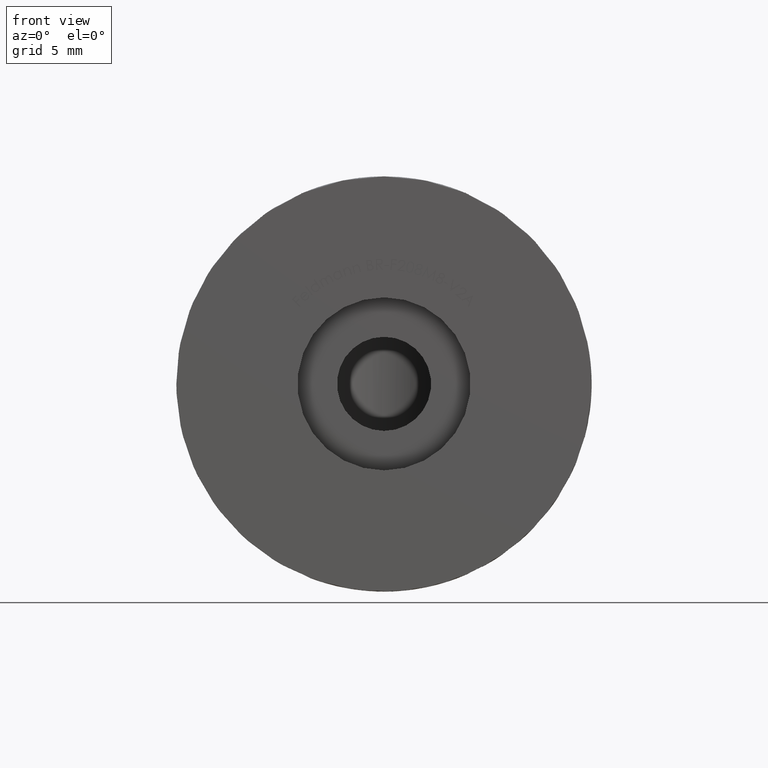
[diagram: clean part render]
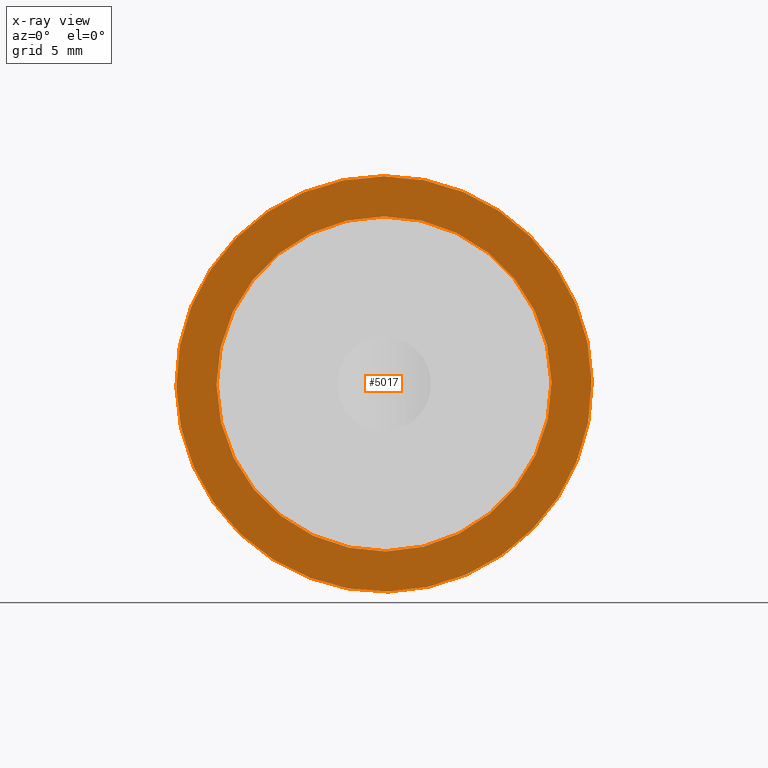
[diagram: x-ray — body ghosted, one internal face saturated and labeled with its STEP entity id]
A machine part, front view, then the same camera in x-ray: the body is ghosted and one INTERNAL B-rep face — a face not visible from any outside direction — is saturated and labeled: STEP entity #5017.
In plain terms, the highlighted planar face has unit normal (0, -1, 0).
Its self-contained STEP definition (entity closure, byte-faithful):
#273 = VERTEX_POINT ( 'NONE', #905 ) ;
#905 = CARTESIAN_POINT ( 'NONE',  ( 0.0000000000000000000, 15.00000000000000000, 12.10000000000000000 ) ) ;
#3226 = DIRECTION ( 'NONE',  ( 0.0000000000000000000, 0.0000000000000000000, 1.000000000000000000 ) ) ;
#4042 = EDGE_LOOP ( 'NONE', ( #7668 ) ) ;
#4607 = CARTESIAN_POINT ( 'NONE',  ( 0.0000000000000000000, 15.00000000000000000, 0.0000000000000000000 ) ) ;
#5017 = ADVANCED_FACE ( 'NONE', ( #5097, #13819 ), #5594, .T. ) ;
#5097 = FACE_OUTER_BOUND ( 'NONE', #13966, .T. ) ;
#5359 = AXIS2_PLACEMENT_3D ( 'NONE', #16502, #12746, #3226 ) ;
#5594 = PLANE ( 'NONE',  #16440 ) ;
#5736 = DIRECTION ( 'NONE',  ( 0.0000000000000000000, 1.000000000000000000, 0.0000000000000000000 ) ) ;
#7155 = DIRECTION ( 'NONE',  ( 0.0000000000000000000, 0.0000000000000000000, 1.000000000000000000 ) ) ;
#7668 = ORIENTED_EDGE ( 'NONE', *, *, #11792, .F. ) ;
#7862 = CIRCLE ( 'NONE', #9044, 12.10000000000000000 ) ;
#8006 = VERTEX_POINT ( 'NONE', #14251 ) ;
#8357 = DIRECTION ( 'NONE',  ( 0.0000000000000000000, 1.000000000000000000, 0.0000000000000000000 ) ) ;
#8475 = CARTESIAN_POINT ( 'NONE',  ( 0.0000000000000000000, 15.00000000000000000, 0.0000000000000000000 ) ) ;
#9044 = AXIS2_PLACEMENT_3D ( 'NONE', #4607, #5736, #7155 ) ;
#10231 = ORIENTED_EDGE ( 'NONE', *, *, #14954, .T. ) ;
#11027 = DIRECTION ( 'NONE',  ( 0.0000000000000000000, -0.0000000000000000000, 1.000000000000000000 ) ) ;
#11563 = CIRCLE ( 'NONE', #5359, 15.00000000000000000 ) ;
#11792 = EDGE_CURVE ( 'NONE', #273, #273, #7862, .T. ) ;
#12746 = DIRECTION ( 'NONE',  ( 0.0000000000000000000, 1.000000000000000000, 0.0000000000000000000 ) ) ;
#13819 = FACE_BOUND ( 'NONE', #4042, .T. ) ;
#13966 = EDGE_LOOP ( 'NONE', ( #10231 ) ) ;
#14251 = CARTESIAN_POINT ( 'NONE',  ( 0.0000000000000000000, 15.00000000000000000, 15.00000000000000000 ) ) ;
#14954 = EDGE_CURVE ( 'NONE', #8006, #8006, #11563, .T. ) ;
#16440 = AXIS2_PLACEMENT_3D ( 'NONE', #8475, #8357, #11027 ) ;
#16502 = CARTESIAN_POINT ( 'NONE',  ( 0.0000000000000000000, 15.00000000000000000, 0.0000000000000000000 ) ) ;